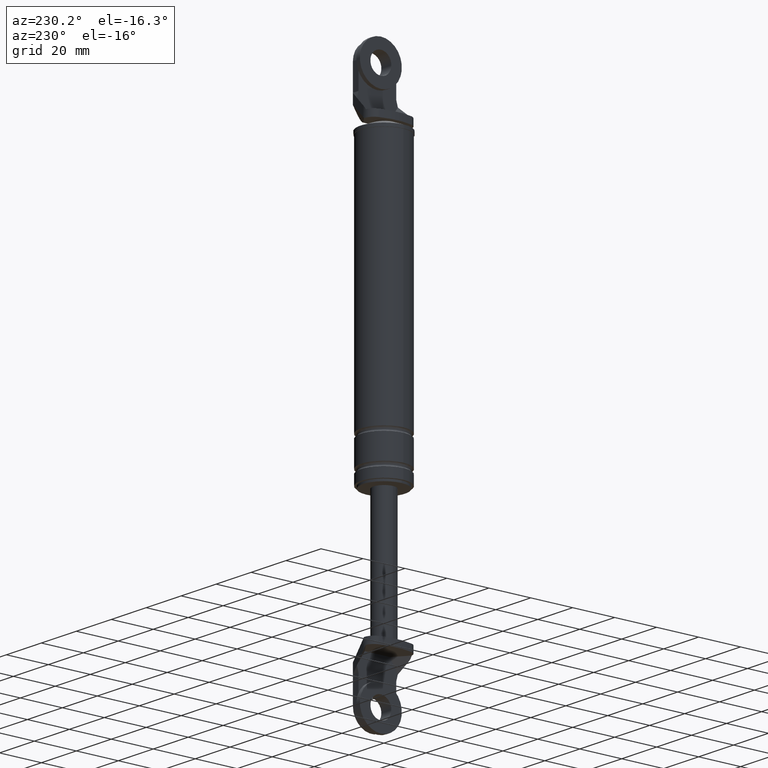
[diagram: clean part render]
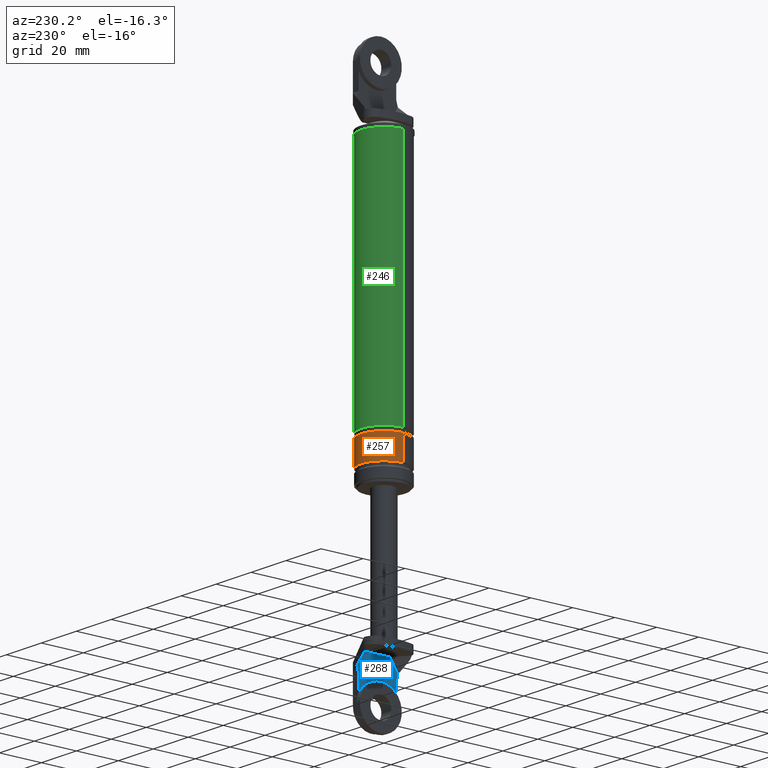
[diagram: same view with three faces highlighted in distinct colors, each labeled with its STEP entity id]
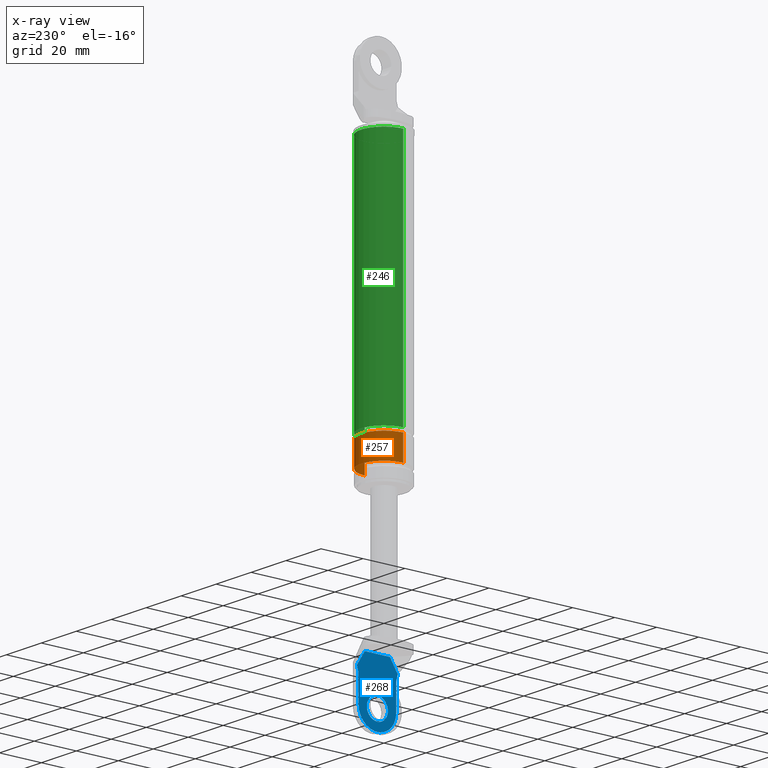
[diagram: x-ray of the same camera — body ghosted, the three highlighted faces saturated]
A machine part, auxiliary view with three faces highlighted in distinct colors.
The next image is the same camera in x-ray (body ghosted, the three faces saturated) — at least one of them is partly hidden behind the body in this view.
Their STEP definitions:

[orange] entity #257 — the highlighted cylindrical surface (edge-blend (fillet) strip) has radius 11 mm, axis along (0, 0, 1).
#257=ADVANCED_FACE('',(#825),#824,.T.);
#824=CYLINDRICAL_SURFACE('',#1568,1.10000000000E+001);
#825=FACE_OUTER_BOUND('',#1569,.T.);
#1565=CARTESIAN_POINT('',(0.00000000000E+000,3.58204186421E-014,0.00000000000E+000));
#1566=DIRECTION('',(-0.00000000000E+000,-0.00000000000E+000,1.00000000000E+000));
#1567=DIRECTION('',(1.00000000000E+000,0.00000000000E+000,0.00000000000E+000));
#1568=AXIS2_PLACEMENT_3D('',#1565,#1566,#1567);
#1569=EDGE_LOOP('',(#2008,#2009,#2010,#2011));
#2008=ORIENTED_EDGE('',*,*,#2278,.T.);
#2009=ORIENTED_EDGE('',*,*,#2283,.F.);
#2010=ORIENTED_EDGE('',*,*,#2273,.F.);
#2011=ORIENTED_EDGE('',*,*,#2284,.T.);
#2273=EDGE_CURVE('',#3122,#3123,#3124,.T.);
#2278=EDGE_CURVE('',#3155,#3148,#3156,.T.);
#2283=EDGE_CURVE('',#3123,#3148,#3186,.T.);
#2284=EDGE_CURVE('',#3122,#3155,#3192,.T.);
#3122=VERTEX_POINT('',#4139);
#3123=VERTEX_POINT('',#4140);
#3124=CIRCLE('',#4144,1.10000000000E+001);
#3148=VERTEX_POINT('',#4159);
#3155=VERTEX_POINT('',#4165);
#3156=CIRCLE('',#4169,1.10000000000E+001);
#3186=(BOUNDED_CURVE() B_SPLINE_CURVE(1,(#4183,#4184),.UNSPECIFIED.,.F.,.F.) B_SPLINE_CURVE_WITH_KNOTS((2,2),(8.33333343261E-002,9.16666667006E-001),.UNSPECIFIED.) CURVE() GEOMETRIC_REPRESENTATION_ITEM() RATIONAL_B_SPLINE_CURVE((1.00000000000E+000,1.00000000000E+000)) REPRESENTATION_ITEM('') );
#3192=(BOUNDED_CURVE() B_SPLINE_CURVE(1,(#4185,#4186),.UNSPECIFIED.,.F.,.F.) B_SPLINE_CURVE_WITH_KNOTS((2,2),(8.33333333333E-002,9.16666666667E-001),.UNSPECIFIED.) CURVE() GEOMETRIC_REPRESENTATION_ITEM() RATIONAL_B_SPLINE_CURVE((7.50000000000E-001,7.50000000000E-001)) REPRESENTATION_ITEM('') );
#4139=CARTESIAN_POINT('',(-1.10000000000E+001,3.58204186421E-014,-4.25000150000E+001));
#4140=CARTESIAN_POINT('',(1.10000000000E+001,3.61192557345E-014,-4.25000150000E+001));
#4141=CARTESIAN_POINT('',(0.00000000000E+000,3.58204186421E-014,-4.25000150000E+001));
#4142=DIRECTION('',(-0.00000000000E+000,0.00000000000E+000,-1.00000000000E+000));
#4143=DIRECTION('',(-1.00000000000E+000,-1.22460635382E-016,0.00000000000E+000));
#4144=AXIS2_PLACEMENT_3D('',#4141,#4142,#4143);
#4159=CARTESIAN_POINT('',(1.10000000000E+001,3.61192557345E-014,-3.10000150000E+001));
#4165=CARTESIAN_POINT('',(-1.10000000000E+001,3.58204186421E-014,-3.10000150000E+001));
#4166=CARTESIAN_POINT('',(0.00000000000E+000,3.58204186421E-014,-3.10000150000E+001));
#4167=DIRECTION('',(-0.00000000000E+000,0.00000000000E+000,-1.00000000000E+000));
#4168=DIRECTION('',(-1.00000000000E+000,-1.22460635382E-016,0.00000000000E+000));
#4169=AXIS2_PLACEMENT_3D('',#4166,#4167,#4168);
#4183=CARTESIAN_POINT('',(1.10000000000E+001,3.58204186421E-014,-4.25000149863E+001));
#4184=CARTESIAN_POINT('',(1.10000000000E+001,3.58204186421E-014,-3.10000149953E+001));
#4185=CARTESIAN_POINT('',(-1.10000000000E+001,3.55271367880E-014,-4.25000150000E+001));
#4186=CARTESIAN_POINT('',(-1.10000000000E+001,3.55271367880E-014,-3.10000150000E+001));

[blue] entity #268 — the highlighted planar face has unit normal (1, 0, 0).
#268=ADVANCED_FACE('',(#935,#936),#934,.F.);
#934=PLANE('',#1623);
#935=FACE_OUTER_BOUND('',#1624,.T.);
#936=FACE_BOUND('',#1625,.T.);
#1620=CARTESIAN_POINT('',(3.80000300000E+000,-1.16951792999E+001,-1.44980015732E+002));
#1621=DIRECTION('',(1.00000000000E+000,0.00000000000E+000,0.00000000000E+000));
#1622=DIRECTION('',(0.00000000000E+000,1.00000000000E+000,0.00000000000E+000));
#1623=AXIS2_PLACEMENT_3D('',#1620,#1621,#1622);
#1624=EDGE_LOOP('',(#2057,#2058,#2059,#2060,#2061,#2062,#2063,#2064,#2065,#2066));
#1625=EDGE_LOOP('',(#2067,#2068));
#2057=ORIENTED_EDGE('',*,*,#2313,.T.);
#2058=ORIENTED_EDGE('',*,*,#2321,.F.);
#2059=ORIENTED_EDGE('',*,*,#2322,.F.);
#2060=ORIENTED_EDGE('',*,*,#2296,.T.);
#2061=ORIENTED_EDGE('',*,*,#2299,.T.);
#2062=ORIENTED_EDGE('',*,*,#2292,.T.);
#2063=ORIENTED_EDGE('',*,*,#2323,.F.);
#2064=ORIENTED_EDGE('',*,*,#2324,.F.);
#2065=ORIENTED_EDGE('',*,*,#2319,.T.);
#2066=ORIENTED_EDGE('',*,*,#2316,.F.);
#2067=ORIENTED_EDGE('',*,*,#2325,.T.);
#2068=ORIENTED_EDGE('',*,*,#2326,.T.);
#2292=EDGE_CURVE('',#3248,#3241,#3249,.T.);
#2296=EDGE_CURVE('',#3276,#3269,#3277,.T.);
#2299=EDGE_CURVE('',#3269,#3248,#3296,.T.);
#2313=EDGE_CURVE('',#3392,#3385,#3393,.T.);
#2316=EDGE_CURVE('',#3392,#3412,#3413,.T.);
#2319=EDGE_CURVE('',#3432,#3412,#3433,.T.);
#2321=EDGE_CURVE('',#3445,#3385,#3446,.T.);
#2322=EDGE_CURVE('',#3276,#3445,#3452,.T.);
#2323=EDGE_CURVE('',#3458,#3241,#3459,.T.);
#2324=EDGE_CURVE('',#3432,#3458,#3465,.T.);
#2325=EDGE_CURVE('',#3471,#3472,#3473,.T.);
#2326=EDGE_CURVE('',#3472,#3471,#3479,.T.);
#3241=VERTEX_POINT('',#4213);
#3248=VERTEX_POINT('',#4217);
#3249=LINE('',#4218,#4219);
#3269=VERTEX_POINT('',#4229);
#3276=VERTEX_POINT('',#4233);
#3277=LINE('',#4234,#4235);
#3296=LINE('',#4245,#4246);
#3385=VERTEX_POINT('',#4297);
#3392=VERTEX_POINT('',#4301);
#3393=LINE('',#4302,#4303);
#3412=VERTEX_POINT('',#4313);
#3413=CIRCLE('',#4317,9.00000000000E+000);
#3432=VERTEX_POINT('',#4325);
#3433=LINE('',#4326,#4327);
#3445=VERTEX_POINT('',#4332);
#3446=LINE('',#4333,#4334);
#3452=LINE('',#4336,#4337);
#3458=VERTEX_POINT('',#4339);
#3459=LINE('',#4340,#4341);
#3465=LINE('',#4343,#4344);
#3471=VERTEX_POINT('',#4346);
#3472=VERTEX_POINT('',#4347);
#3473=CIRCLE('',#4351,5.00000000000E+000);
#3479=CIRCLE('',#4355,5.00000000000E+000);
#4213=CARTESIAN_POINT('',(3.80000300000E+000,9.74598274994E+000,-1.18193590612E+002));
#4217=CARTESIAN_POINT('',(3.80000300000E+000,6.00000000000E+000,-1.12200012000E+002));
#4218=CARTESIAN_POINT('',(3.80000300000E+000,6.00000000000E+000,-1.12200012000E+002));
#4219=VECTOR('',#4220,7.06791138451E+000);
#4220=DIRECTION('',(0.00000000000E+000,5.29998544994E-001,-8.47998550886E-001));
#4229=CARTESIAN_POINT('',(3.80000300000E+000,-6.00000000000E+000,-1.12200012000E+002));
#4233=CARTESIAN_POINT('',(3.80000300000E+000,-9.74598274994E+000,-1.18193590612E+002));
#4234=CARTESIAN_POINT('',(3.80000300000E+000,-9.74598274994E+000,-1.18193590612E+002));
#4235=VECTOR('',#4236,7.06791138451E+000);
#4236=DIRECTION('',(0.00000000000E+000,5.29998544994E-001,8.47998550886E-001));
#4245=CARTESIAN_POINT('',(3.80000300000E+000,-6.00000000000E+000,-1.12200012000E+002));
#4246=VECTOR('',#4247,1.20000000000E+001);
#4247=DIRECTION('',(0.00000000000E+000,1.00000000000E+000,0.00000000000E+000));
#4297=CARTESIAN_POINT('',(3.80000300000E+000,-9.00000000000E+000,-1.21000015000E+002));
#4301=CARTESIAN_POINT('',(3.80000300000E+000,-9.00000000000E+000,-1.33000014215E+002));
#4302=CARTESIAN_POINT('',(3.80000300000E+000,-9.00000000000E+000,-1.33000014215E+002));
#4303=VECTOR('',#4304,1.19999992146E+001);
#4304=DIRECTION('',(0.00000000000E+000,0.00000000000E+000,1.00000000000E+000));
#4313=CARTESIAN_POINT('',(3.80000300000E+000,9.00000000000E+000,-1.33000015000E+002));
#4314=CARTESIAN_POINT('',(3.80000300000E+000,0.00000000000E+000,-1.33000015000E+002));
#4315=DIRECTION('',(1.00000000000E+000,0.00000000000E+000,0.00000000000E+000));
#4316=DIRECTION('',(-0.00000000000E+000,-0.00000000000E+000,1.00000000000E+000));
#4317=AXIS2_PLACEMENT_3D('',#4314,#4315,#4316);
#4325=CARTESIAN_POINT('',(3.80000300000E+000,9.00000000000E+000,-1.21000015000E+002));
#4326=CARTESIAN_POINT('',(3.80000300000E+000,9.00000000000E+000,-1.21000015000E+002));
#4327=VECTOR('',#4328,1.20000000000E+001);
#4328=DIRECTION('',(0.00000000000E+000,0.00000000000E+000,-1.00000000000E+000));
#4332=CARTESIAN_POINT('',(3.80000300000E+000,-9.74598274994E+000,-1.18215969476E+002));
#4333=CARTESIAN_POINT('',(3.80000300000E+000,-9.74598274994E+000,-1.18215969476E+002));
#4334=VECTOR('',#4335,2.88225601652E+000);
#4335=DIRECTION('',(0.00000000000E+000,2.58819045103E-001,-9.65925826289E-001));
#4336=CARTESIAN_POINT('',(3.80000300000E+000,-9.74598274994E+000,-1.18193590612E+002));
#4337=VECTOR('',#4338,2.23788638129E-002);
#4338=DIRECTION('',(0.00000000000E+000,0.00000000000E+000,-1.00000000000E+000));
#4339=CARTESIAN_POINT('',(3.80000300000E+000,9.74598274994E+000,-1.18215969476E+002));
#4340=CARTESIAN_POINT('',(3.80000300000E+000,9.74598274994E+000,-1.18215969476E+002));
#4341=VECTOR('',#4342,2.23788638136E-002);
#4342=DIRECTION('',(0.00000000000E+000,0.00000000000E+000,1.00000000000E+000));
#4343=CARTESIAN_POINT('',(3.80000300000E+000,9.00000000000E+000,-1.21000015000E+002));
#4344=VECTOR('',#4345,2.88225601652E+000);
#4345=DIRECTION('',(0.00000000000E+000,2.58819045103E-001,9.65925826289E-001));
#4346=CARTESIAN_POINT('',(3.80000300000E+000,0.00000000000E+000,-1.38000015000E+002));
#4347=CARTESIAN_POINT('',(3.80000300000E+000,2.96059473233E-016,-1.28000015000E+002));
#4348=CARTESIAN_POINT('',(3.80000300000E+000,0.00000000000E+000,-1.33000015000E+002));
#4349=DIRECTION('',(1.00000000000E+000,0.00000000000E+000,0.00000000000E+000));
#4350=DIRECTION('',(0.00000000000E+000,-1.22460635382E-016,-1.00000000000E+000));
#4351=AXIS2_PLACEMENT_3D('',#4348,#4349,#4350);
#4352=CARTESIAN_POINT('',(3.80000300000E+000,0.00000000000E+000,-1.33000015000E+002));
#4353=DIRECTION('',(1.00000000000E+000,0.00000000000E+000,0.00000000000E+000));
#4354=DIRECTION('',(0.00000000000E+000,-1.22460635382E-016,-1.00000000000E+000));
#4355=AXIS2_PLACEMENT_3D('',#4352,#4353,#4354);

[green] entity #246 — the highlighted cylindrical surface (edge-blend (fillet) strip) has radius 11 mm, axis along (0, 0, 1).
#246=ADVANCED_FACE('',(#715),#714,.T.);
#714=CYLINDRICAL_SURFACE('',#1417,1.10000000000E+001);
#715=FACE_OUTER_BOUND('',#1418,.T.);
#1414=CARTESIAN_POINT('',(0.00000000000E+000,3.58204186421E-014,0.00000000000E+000));
#1415=DIRECTION('',(-0.00000000000E+000,-0.00000000000E+000,1.00000000000E+000));
#1416=DIRECTION('',(-1.00000000000E+000,1.22464679915E-016,0.00000000000E+000));
#1417=AXIS2_PLACEMENT_3D('',#1414,#1415,#1416);
#1418=EDGE_LOOP('',(#1962,#1963,#1964,#1965));
#1962=ORIENTED_EDGE('',*,*,#2266,.F.);
#1963=ORIENTED_EDGE('',*,*,#2263,.T.);
#1964=ORIENTED_EDGE('',*,*,#2254,.F.);
#1965=ORIENTED_EDGE('',*,*,#2265,.F.);
#2254=EDGE_CURVE('',#3000,#3001,#3002,.T.);
#2263=EDGE_CURVE('',#3058,#3001,#3059,.T.);
#2265=EDGE_CURVE('',#3065,#3000,#3072,.T.);
#2266=EDGE_CURVE('',#3058,#3065,#3078,.T.);
#3000=VERTEX_POINT('',#4076);
#3001=VERTEX_POINT('',#4077);
#3002=CIRCLE('',#4081,1.10000000000E+001);
#3058=VERTEX_POINT('',#4107);
#3059=(BOUNDED_CURVE() B_SPLINE_CURVE(1,(#4108,#4109),.UNSPECIFIED.,.F.,.F.) B_SPLINE_CURVE_WITH_KNOTS((2,2),(7.46268656100E-002,9.25373134135E-001),.UNSPECIFIED.) CURVE() GEOMETRIC_REPRESENTATION_ITEM() RATIONAL_B_SPLINE_CURVE((1.00000000000E+000,1.00000000000E+000)) REPRESENTATION_ITEM('') );
#3065=VERTEX_POINT('',#4110);
#3072=(BOUNDED_CURVE() B_SPLINE_CURVE(1,(#4115,#4116),.UNSPECIFIED.,.F.,.F.) B_SPLINE_CURVE_WITH_KNOTS((2,2),(7.46268656716E-002,9.25373134328E-001),.UNSPECIFIED.) CURVE() GEOMETRIC_REPRESENTATION_ITEM() RATIONAL_B_SPLINE_CURVE((7.50000000000E-001,7.50000000000E-001)) REPRESENTATION_ITEM('') );
#3078=CIRCLE('',#4120,1.10000000000E+001);
#4076=CARTESIAN_POINT('',(1.10000000000E+001,3.58204186421E-014,8.49999850000E+001));
#4077=CARTESIAN_POINT('',(-1.10000000000E+001,3.61192557345E-014,8.49999850000E+001));
#4078=CARTESIAN_POINT('',(0.00000000000E+000,3.58204186421E-014,8.49999850000E+001));
#4079=DIRECTION('',(0.00000000000E+000,0.00000000000E+000,1.00000000000E+000));
#4080=DIRECTION('',(1.00000000000E+000,-1.22460635382E-016,0.00000000000E+000));
#4081=AXIS2_PLACEMENT_3D('',#4078,#4079,#4080);
#4107=CARTESIAN_POINT('',(-1.10000000000E+001,3.58204186421E-014,-2.90000150000E+001));
#4108=CARTESIAN_POINT('',(-1.10000000000E+001,3.71675301212E-014,-2.90000150083E+001));
#4109=CARTESIAN_POINT('',(-1.10000000000E+001,3.71675301212E-014,8.49999849741E+001));
#4110=CARTESIAN_POINT('',(1.10000000000E+001,3.61192557345E-014,-2.90000150000E+001));
#4115=CARTESIAN_POINT('',(1.10000000000E+001,3.49350178415E-014,-2.90000150000E+001));
#4116=CARTESIAN_POINT('',(1.10000000000E+001,3.49350178415E-014,8.49999850000E+001));
#4117=CARTESIAN_POINT('',(0.00000000000E+000,3.58204186421E-014,-2.90000150000E+001));
#4118=DIRECTION('',(-0.00000000000E+000,0.00000000000E+000,-1.00000000000E+000));
#4119=DIRECTION('',(-1.00000000000E+000,-1.22460635382E-016,0.00000000000E+000));
#4120=AXIS2_PLACEMENT_3D('',#4117,#4118,#4119);